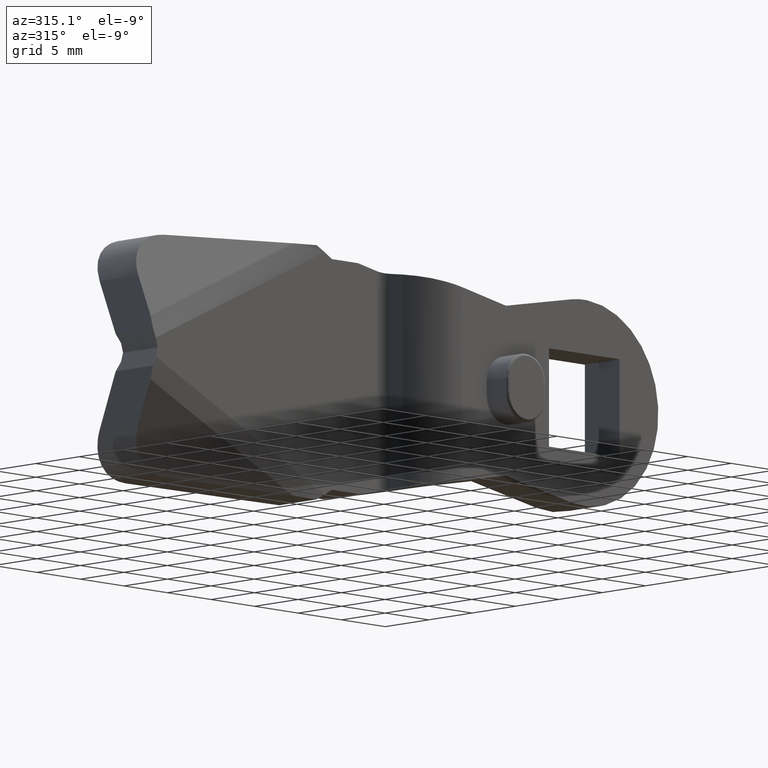
[diagram: clean part render]
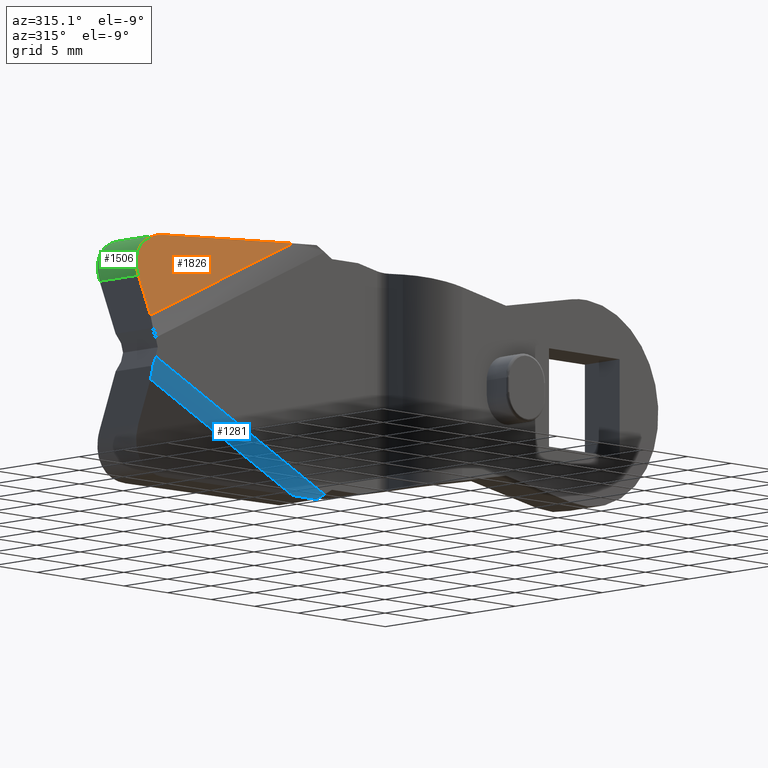
[diagram: same view with three faces highlighted in distinct colors, each labeled with its STEP entity id]
A machine part, auxiliary view with three faces highlighted in distinct colors.
Their STEP definitions:

[orange] entity #1826 — the highlighted face is a freeform B-spline surface patch.
#1114=CARTESIAN_POINT('',(-29.101330966022299,-3.589033668687000,10.389891029633000));
#1115=VERTEX_POINT('',#1114);
#1131=CARTESIAN_POINT('',(-45.422700162126702,-3.589033668687000,2.637240661485390));
#1132=VERTEX_POINT('',#1131);
#1133=CARTESIAN_POINT('',(-45.422700162126702,-3.589033668687000,2.637240661485390));
#1134=CARTESIAN_POINT('',(-29.101330966022299,-3.589033668687000,10.389891029633000));
#1135=QUASI_UNIFORM_CURVE('',1,(#1133,#1134),.UNSPECIFIED.,.F.,.U.);
#1136=EDGE_CURVE('',#1132,#1115,#1135,.T.);
#1460=CARTESIAN_POINT('',(-41.435250388168953,-1.164016793155836,9.987282596007610));
#1461=VERTEX_POINT('',#1460);
#1462=CARTESIAN_POINT('',(-45.302375168507503,-2.063245879781040,6.127238442916280));
#1463=VERTEX_POINT('',#1462);
#1464=CARTESIAN_POINT('',(-41.435250388168953,-1.164016793155836,9.987282596007610));
#1465=CARTESIAN_POINT('',(-45.173499128935049,-0.429026075978294,9.865257275568522));
#1466=CARTESIAN_POINT('',(-45.302375168507503,-2.063245879781040,6.127238442916280));
#1474=(BOUNDED_CURVE()B_SPLINE_CURVE(2,(#1464,#1465,#1466),.UNSPECIFIED.,.F.,.U.)CURVE()GEOMETRIC_REPRESENTATION_ITEM()QUASI_UNIFORM_CURVE()RATIONAL_B_SPLINE_CURVE((1.0,0.730425871808849,1.0))REPRESENTATION_ITEM(''));
#1475=EDGE_CURVE('',#1461,#1463,#1474,.T.);
#1512=CARTESIAN_POINT('',(-29.101330966022299,-3.589033668687000,10.389891029633000));
#1513=CARTESIAN_POINT('',(-41.435250388168953,-1.164016793155836,9.987282596007610));
#1514=QUASI_UNIFORM_CURVE('',1,(#1512,#1513),.UNSPECIFIED.,.F.,.U.);
#1515=EDGE_CURVE('',#1115,#1461,#1514,.T.);
#1811=CARTESIAN_POINT('',(-46.271146470860252,-3.584799606234328,2.243754808309688));
#1812=CARTESIAN_POINT('',(-28.624259440384900,-6.992113586312883,2.959969684671539));
#1813=CARTESIAN_POINT('',(-45.926918643123102,-0.137165373337608,10.164035325154501));
#1814=CARTESIAN_POINT('',(-28.280031612647761,-3.544479353416165,10.880250201516350));
#1815=B_SPLINE_SURFACE_WITH_KNOTS('',1,1,((#1811,#1813),(#1812,#1814)),.UNSPECIFIED.,.F.,.F.,.U.,(2,2),(2,2),(0.0,17.987089096747141),(0.0,8.644970680502132),.UNSPECIFIED.);
#1816=CARTESIAN_POINT('',(-45.302375168507503,-2.063245879781040,6.127238442916280));
#1817=CARTESIAN_POINT('',(-45.422700162126702,-3.589033668687000,2.637240661485390));
#1818=QUASI_UNIFORM_CURVE('',1,(#1816,#1817),.UNSPECIFIED.,.F.,.U.);
#1819=EDGE_CURVE('',#1463,#1132,#1818,.T.);
#1820=ORIENTED_EDGE('',*,*,#1819,.T.);
#1821=ORIENTED_EDGE('',*,*,#1136,.T.);
#1822=ORIENTED_EDGE('',*,*,#1515,.T.);
#1823=ORIENTED_EDGE('',*,*,#1475,.T.);
#1824=EDGE_LOOP('',(#1820,#1821,#1822,#1823));
#1825=FACE_OUTER_BOUND('',#1824,.T.);
#1826=ADVANCED_FACE('',(#1825),#1815,.T.);

[blue] entity #1281 — the highlighted face is a freeform B-spline surface patch.
#1191=CARTESIAN_POINT('',(-46.507197222706651,-3.548282229636058,-2.211238204088800));
#1192=CARTESIAN_POINT('',(-26.134075160122261,-3.548282229636058,-11.888471183813857));
#1193=CARTESIAN_POINT('',(-46.116432591216395,-4.022240439074980,-1.388575822003864));
#1194=CARTESIAN_POINT('',(-25.743310528632016,-4.022240439074980,-11.065808801728915));
#1195=CARTESIAN_POINT('',(-45.676034372932065,-3.998972876619834,-0.461421678247124));
#1196=CARTESIAN_POINT('',(-25.302912310347683,-3.998972876619834,-10.138654657972175));
#1204=(BOUNDED_SURFACE()B_SPLINE_SURFACE(1,2,((#1191,#1193,#1195),(#1192,#1194,#1196)),.UNSPECIFIED.,.F.,.F.,.U.)B_SPLINE_SURFACE_WITH_KNOTS((2,2),(3,3),(0.0,22.554665608712561),(0.0,2.020640996397331),.UNSPECIFIED.)GEOMETRIC_REPRESENTATION_ITEM()RATIONAL_B_SPLINE_SURFACE(((0.997532546184918,0.963878778805393,0.992719970057956),(0.997532546184918,0.963878778805393,0.992719970057956)))REPRESENTATION_ITEM('')SURFACE());
#1205=CARTESIAN_POINT('',(-45.422700162126702,-3.589033668687000,-2.637240661485515));
#1206=VERTEX_POINT('',#1205);
#1207=CARTESIAN_POINT('',(-45.460283177382401,-3.919693638437140,-1.547154255358015));
#1208=VERTEX_POINT('',#1207);
#1209=CARTESIAN_POINT('',(-45.422700162126667,-3.589033668686999,-2.637240661485515));
#1210=CARTESIAN_POINT('',(-45.440664152727827,-3.816827052877726,-2.116199392686061));
#1211=CARTESIAN_POINT('',(-45.460283177382401,-3.919693638437140,-1.547154255358015));
#1219=(BOUNDED_CURVE()B_SPLINE_CURVE(2,(#1209,#1210,#1211),.UNSPECIFIED.,.F.,.U.)CURVE()GEOMETRIC_REPRESENTATION_ITEM()QUASI_UNIFORM_CURVE()RATIONAL_B_SPLINE_CURVE((1.0,0.991783610846503,1.0))REPRESENTATION_ITEM(''));
#1220=EDGE_CURVE('',#1206,#1208,#1219,.T.);
#1221=ORIENTED_EDGE('',*,*,#1220,.F.);
#1222=CARTESIAN_POINT('',(-29.101330966022299,-3.589033668686995,-10.389891029633100));
#1223=VERTEX_POINT('',#1222);
#1224=CARTESIAN_POINT('',(-29.101330966022299,-3.589033668686995,-10.389891029633100));
#1225=CARTESIAN_POINT('',(-45.422700162126702,-3.589033668687000,-2.637240661485515));
#1226=QUASI_UNIFORM_CURVE('',1,(#1224,#1225),.UNSPECIFIED.,.F.,.U.);
#1227=EDGE_CURVE('',#1223,#1206,#1226,.T.);
#1228=ORIENTED_EDGE('',*,*,#1227,.F.);
#1229=CARTESIAN_POINT('',(-26.677422310739399,-3.919693638437140,-10.469013167013200));
#1230=VERTEX_POINT('',#1229);
#1231=CARTESIAN_POINT('',(-26.677422310739399,-3.919693638437140,-10.469013167013200));
#1232=CARTESIAN_POINT('',(-27.942747174460663,-3.816827052938306,-10.427709957224490));
#1233=CARTESIAN_POINT('',(-29.101330966022260,-3.589033668686995,-10.389891029633089));
#1241=(BOUNDED_CURVE()B_SPLINE_CURVE(2,(#1231,#1232,#1233),.UNSPECIFIED.,.F.,.U.)CURVE()GEOMETRIC_REPRESENTATION_ITEM()QUASI_UNIFORM_CURVE()RATIONAL_B_SPLINE_CURVE((1.0,0.991783610842216,1.0))REPRESENTATION_ITEM(''));
#1242=EDGE_CURVE('',#1230,#1223,#1241,.T.);
#1243=ORIENTED_EDGE('',*,*,#1242,.F.);
#1244=CARTESIAN_POINT('',(-25.838711795582501,-4.000000189989685,-9.984506835978550));
#1245=VERTEX_POINT('',#1244);
#1246=CARTESIAN_POINT('',(-25.838711795582501,-4.000000189989684,-9.984506835978550));
#1247=CARTESIAN_POINT('',(-26.262319361006949,-4.000000189989684,-10.229216474898395));
#1248=CARTESIAN_POINT('',(-26.677422310739399,-3.919693638437140,-10.469013167013200));
#1256=(BOUNDED_CURVE()B_SPLINE_CURVE(2,(#1246,#1247,#1248),.UNSPECIFIED.,.F.,.U.)CURVE()GEOMETRIC_REPRESENTATION_ITEM()QUASI_UNIFORM_CURVE()RATIONAL_B_SPLINE_CURVE((1.0,0.994968180929699,1.0))REPRESENTATION_ITEM(''));
#1257=EDGE_CURVE('',#1245,#1230,#1256,.T.);
#1258=ORIENTED_EDGE('',*,*,#1257,.F.);
#1259=CARTESIAN_POINT('',(-45.230142670142307,-4.000000189989685,-0.773577170565086));
#1260=VERTEX_POINT('',#1259);
#1261=CARTESIAN_POINT('',(-45.230142670142307,-4.000000189989685,-0.773577170565086));
#1262=CARTESIAN_POINT('',(-25.838711795582501,-4.000000189989685,-9.984506835978550));
#1263=QUASI_UNIFORM_CURVE('',1,(#1261,#1262),.UNSPECIFIED.,.F.,.U.);
#1264=EDGE_CURVE('',#1260,#1245,#1263,.T.);
#1265=ORIENTED_EDGE('',*,*,#1264,.F.);
#1266=CARTESIAN_POINT('',(-45.460283177382401,-3.919693638437140,-1.547154255358015));
#1267=CARTESIAN_POINT('',(-45.346379748668184,-4.000000189989685,-1.164287790912662));
#1268=CARTESIAN_POINT('',(-45.230142670142307,-4.000000189989684,-0.773577170565087));
#1276=(BOUNDED_CURVE()B_SPLINE_CURVE(2,(#1266,#1267,#1268),.UNSPECIFIED.,.F.,.U.)CURVE()GEOMETRIC_REPRESENTATION_ITEM()QUASI_UNIFORM_CURVE()RATIONAL_B_SPLINE_CURVE((1.0,0.994968180926331,1.0))REPRESENTATION_ITEM(''));
#1277=EDGE_CURVE('',#1208,#1260,#1276,.T.);
#1278=ORIENTED_EDGE('',*,*,#1277,.F.);
#1279=EDGE_LOOP('',(#1221,#1228,#1243,#1258,#1265,#1278));
#1280=FACE_OUTER_BOUND('',#1279,.T.);
#1281=ADVANCED_FACE('',(#1280),#1204,.T.);

[green] entity #1506 — the highlighted face is a freeform B-spline surface patch.
#1446=CARTESIAN_POINT('',(-41.271616739524049,-2.201253697811232,9.989274711690445));
#1447=CARTESIAN_POINT('',(-41.271616739524049,3.598524854907575,9.989274711690445));
#1448=CARTESIAN_POINT('',(-45.441593820229393,-2.201253697811232,10.023817539327704));
#1449=CARTESIAN_POINT('',(-45.441593820229393,3.598524854907575,10.023817539327704));
#1450=CARTESIAN_POINT('',(-45.302525493640374,-2.201253697811232,5.856016912967472));
#1451=CARTESIAN_POINT('',(-45.302525493640374,3.598524854907575,5.856016912967472));
#1459=(BOUNDED_SURFACE()B_SPLINE_SURFACE(1,2,((#1446,#1448,#1450),(#1447,#1449,#1451)),.UNSPECIFIED.,.F.,.F.,.U.)B_SPLINE_SURFACE_WITH_KNOTS((2,2),(3,3),(0.0,5.799778552718808),(0.0,6.823388490104695),.UNSPECIFIED.)GEOMETRIC_REPRESENTATION_ITEM()RATIONAL_B_SPLINE_SURFACE(((1.0,0.690652449765910,0.995438137963679),(1.0,0.690652449765910,0.995438137963679)))REPRESENTATION_ITEM('')SURFACE());
#1460=CARTESIAN_POINT('',(-41.435250388168953,-1.164016793155836,9.987282596007610));
#1461=VERTEX_POINT('',#1460);
#1462=CARTESIAN_POINT('',(-45.302375168507503,-2.063245879781040,6.127238442916280));
#1463=VERTEX_POINT('',#1462);
#1464=CARTESIAN_POINT('',(-41.435250388168953,-1.164016793155836,9.987282596007610));
#1465=CARTESIAN_POINT('',(-45.173499128935049,-0.429026075978294,9.865257275568522));
#1466=CARTESIAN_POINT('',(-45.302375168507503,-2.063245879781040,6.127238442916280));
#1474=(BOUNDED_CURVE()B_SPLINE_CURVE(2,(#1464,#1465,#1466),.UNSPECIFIED.,.F.,.U.)CURVE()GEOMETRIC_REPRESENTATION_ITEM()QUASI_UNIFORM_CURVE()RATIONAL_B_SPLINE_CURVE((1.0,0.730425871808849,1.0))REPRESENTATION_ITEM(''));
#1475=EDGE_CURVE('',#1461,#1463,#1474,.T.);
#1476=ORIENTED_EDGE('',*,*,#1475,.F.);
#1477=CARTESIAN_POINT('',(-41.435250388168953,3.294008147242960,9.987282596007601));
#1478=VERTEX_POINT('',#1477);
#1479=CARTESIAN_POINT('',(-41.435250388168953,3.294008147242960,9.987282596007601));
#1480=CARTESIAN_POINT('',(-41.435250388168953,-1.164016793155836,9.987282596007610));
#1481=QUASI_UNIFORM_CURVE('',1,(#1479,#1480),.UNSPECIFIED.,.F.,.U.);
#1482=EDGE_CURVE('',#1478,#1461,#1481,.T.);
#1483=ORIENTED_EDGE('',*,*,#1482,.F.);
#1484=CARTESIAN_POINT('',(-45.302375168507503,2.394779060617760,6.127238442916280));
#1485=VERTEX_POINT('',#1484);
#1486=CARTESIAN_POINT('',(-45.302375168507503,2.394779060617760,6.127238442916280));
#1487=CARTESIAN_POINT('',(-45.173499128930153,4.028998864373508,9.865257275547242));
#1488=CARTESIAN_POINT('',(-41.435250388168953,3.294008147242960,9.987282596007601));
#1496=(BOUNDED_CURVE()B_SPLINE_CURVE(2,(#1486,#1487,#1488),.UNSPECIFIED.,.F.,.U.)CURVE()GEOMETRIC_REPRESENTATION_ITEM()QUASI_UNIFORM_CURVE()RATIONAL_B_SPLINE_CURVE((1.0,0.730425871811320,1.0))REPRESENTATION_ITEM(''));
#1497=EDGE_CURVE('',#1485,#1478,#1496,.T.);
#1498=ORIENTED_EDGE('',*,*,#1497,.F.);
#1499=CARTESIAN_POINT('',(-45.302375168507503,-2.063245879781040,6.127238442916280));
#1500=CARTESIAN_POINT('',(-45.302375168507503,2.394779060617760,6.127238442916280));
#1501=QUASI_UNIFORM_CURVE('',1,(#1499,#1500),.UNSPECIFIED.,.F.,.U.);
#1502=EDGE_CURVE('',#1463,#1485,#1501,.T.);
#1503=ORIENTED_EDGE('',*,*,#1502,.F.);
#1504=EDGE_LOOP('',(#1476,#1483,#1498,#1503));
#1505=FACE_OUTER_BOUND('',#1504,.T.);
#1506=ADVANCED_FACE('',(#1505),#1459,.T.);